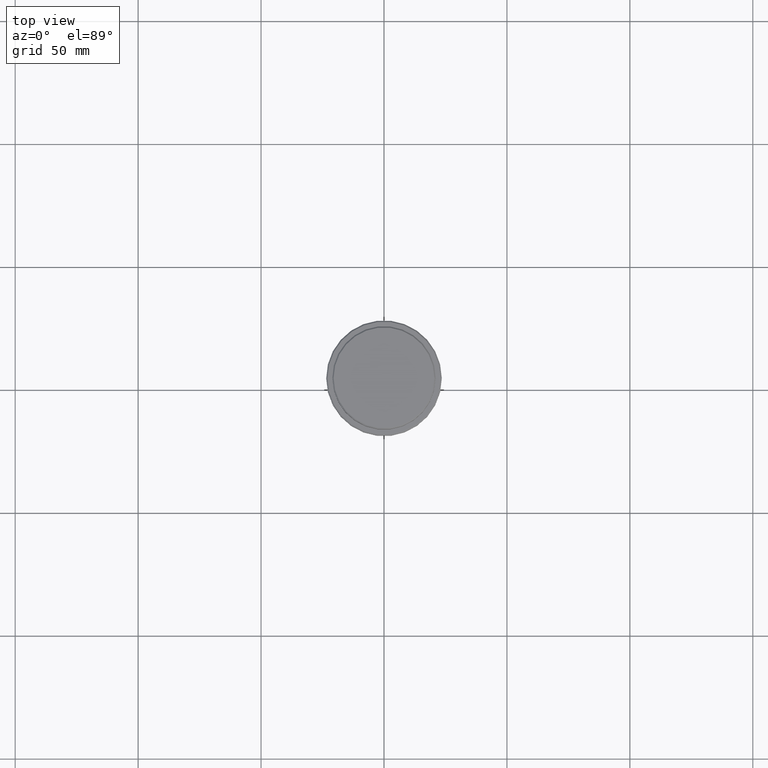
[diagram: clean part render]
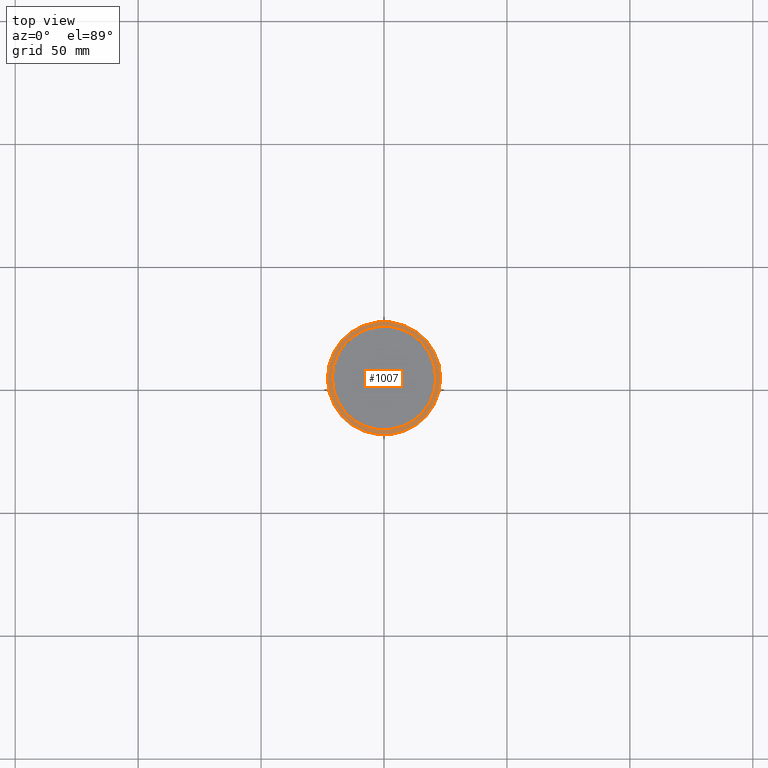
[diagram: same view with one face highlighted and labeled with its STEP entity id]
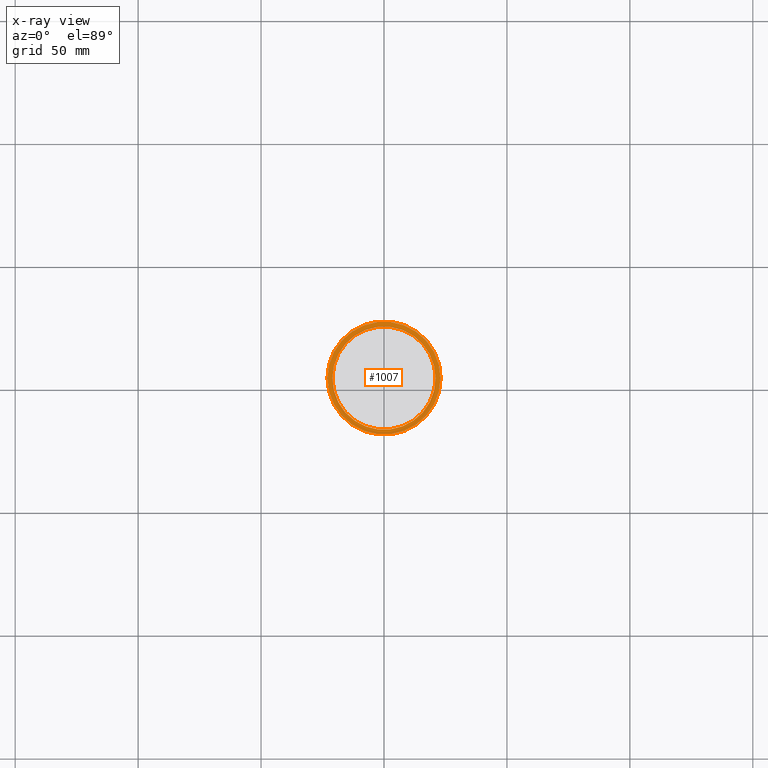
[diagram: x-ray of the same camera — body ghosted, the highlighted face saturated]
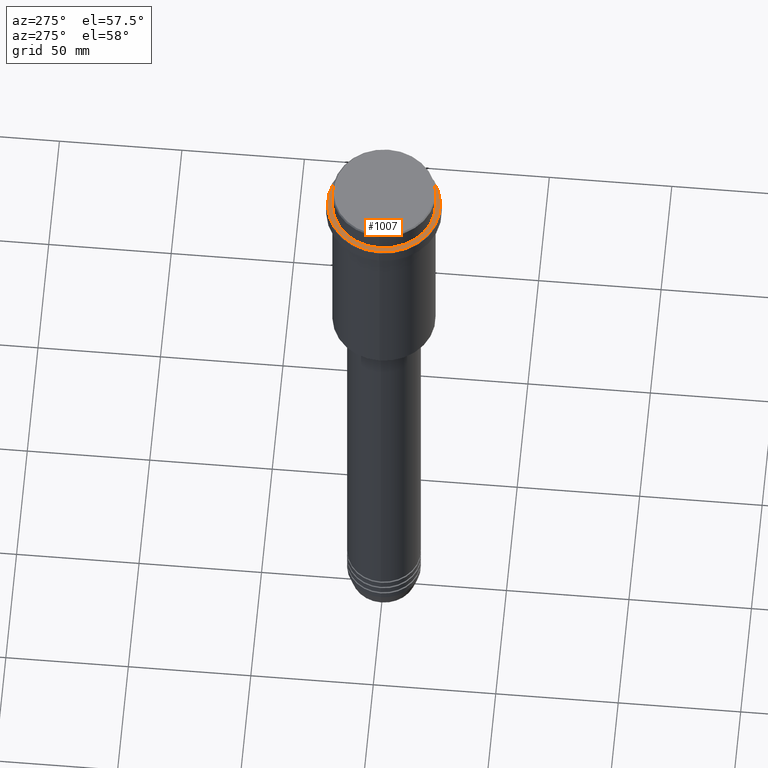
[diagram: same view with one face highlighted and labeled with its STEP entity id]
A machine part, top view. The second image highlights one B-rep face of the part: STEP entity #1007.
The next image is the same camera in x-ray: the body ghosted, the highlighted face saturated — about 0% of this face is hidden behind the body in this view.
A second angle (auxiliary view) of the same face is appended — the face is thin or edge-on in the first view.
In plain terms, the highlighted planar face has unit normal (0, -0, 1).
Its self-contained STEP definition (entity closure, byte-faithful):
#76 = CARTESIAN_POINT ( 'NONE',  ( 0.000000000000000000, 0.000000000000000000, -9.000000000000001776 ) ) ;
#120 = ORIENTED_EDGE ( 'NONE', *, *, #867, .T. ) ;
#130 = EDGE_CURVE ( 'NONE', #326, #1393, #586, .T. ) ;
#217 = DIRECTION ( 'NONE',  ( 1.000000000000000000, 0.000000000000000000, 0.000000000000000000 ) ) ;
#226 = AXIS2_PLACEMENT_3D ( 'NONE', #928, #712, #491 ) ;
#262 = ORIENTED_EDGE ( 'NONE', *, *, #307, .T. ) ;
#307 = EDGE_CURVE ( 'NONE', #861, #483, #794, .T. ) ;
#326 = VERTEX_POINT ( 'NONE', #1111 ) ;
#363 = DIRECTION ( 'NONE',  ( 1.000000000000000000, 0.000000000000000000, 0.000000000000000000 ) ) ;
#367 = CIRCLE ( 'NONE', #617, 23.00000000000002487 ) ;
#412 = DIRECTION ( 'NONE',  ( -0.000000000000000000, -0.000000000000000000, 1.000000000000000000 ) ) ;
#444 = FACE_OUTER_BOUND ( 'NONE', #1053, .T. ) ;
#450 = ORIENTED_EDGE ( 'NONE', *, *, #671, .T. ) ;
#483 = VERTEX_POINT ( 'NONE', #502 ) ;
#491 = DIRECTION ( 'NONE',  ( 1.000000000000000000, 0.000000000000000000, 0.000000000000000000 ) ) ;
#502 = CARTESIAN_POINT ( 'NONE',  ( 23.00000000000002487, 2.847303808017597717E-15, -9.000000000000001776 ) ) ;
#586 = CIRCLE ( 'NONE', #663, 20.99999999999999289 ) ;
#617 = AXIS2_PLACEMENT_3D ( 'NONE', #76, #412, #845 ) ;
#663 = AXIS2_PLACEMENT_3D ( 'NONE', #1193, #1307, #217 ) ;
#671 = EDGE_CURVE ( 'NONE', #483, #861, #367, .T. ) ;
#712 = DIRECTION ( 'NONE',  ( 0.000000000000000000, 0.000000000000000000, -1.000000000000000000 ) ) ;
#794 = CIRCLE ( 'NONE', #977, 23.00000000000002487 ) ;
#799 = AXIS2_PLACEMENT_3D ( 'NONE', #1280, #947, #1081 ) ;
#845 = DIRECTION ( 'NONE',  ( 1.000000000000000000, 0.000000000000000000, 0.000000000000000000 ) ) ;
#861 = VERTEX_POINT ( 'NONE', #1127 ) ;
#866 = CIRCLE ( 'NONE', #226, 20.99999999999999289 ) ;
#867 = EDGE_CURVE ( 'NONE', #1393, #326, #866, .T. ) ;
#879 = CARTESIAN_POINT ( 'NONE',  ( 20.99999999999999289, 0.000000000000000000, -9.000000000000001776 ) ) ;
#884 = CARTESIAN_POINT ( 'NONE',  ( 0.000000000000000000, 0.000000000000000000, -9.000000000000001776 ) ) ;
#903 = EDGE_LOOP ( 'NONE', ( #120, #1348 ) ) ;
#928 = CARTESIAN_POINT ( 'NONE',  ( 0.000000000000000000, 0.000000000000000000, -9.000000000000001776 ) ) ;
#947 = DIRECTION ( 'NONE',  ( 0.000000000000000000, -0.000000000000000000, 1.000000000000000000 ) ) ;
#977 = AXIS2_PLACEMENT_3D ( 'NONE', #884, #1013, #363 ) ;
#978 = PLANE ( 'NONE',  #799 ) ;
#1007 = ADVANCED_FACE ( 'NONE', ( #444, #1064 ), #978, .T. ) ;
#1013 = DIRECTION ( 'NONE',  ( -0.000000000000000000, -0.000000000000000000, 1.000000000000000000 ) ) ;
#1053 = EDGE_LOOP ( 'NONE', ( #262, #450 ) ) ;
#1064 = FACE_BOUND ( 'NONE', #903, .T. ) ;
#1081 = DIRECTION ( 'NONE',  ( 1.000000000000000000, 0.000000000000000000, 0.000000000000000000 ) ) ;
#1111 = CARTESIAN_POINT ( 'NONE',  ( -20.99999999999999289, 2.571758278209440872E-15, -9.000000000000001776 ) ) ;
#1127 = CARTESIAN_POINT ( 'NONE',  ( -23.00000000000002487, 0.000000000000000000, -9.000000000000001776 ) ) ;
#1193 = CARTESIAN_POINT ( 'NONE',  ( 0.000000000000000000, 0.000000000000000000, -9.000000000000001776 ) ) ;
#1280 = CARTESIAN_POINT ( 'NONE',  ( 0.000000000000000000, 20.49999999999999645, -9.000000000000001776 ) ) ;
#1307 = DIRECTION ( 'NONE',  ( 0.000000000000000000, 0.000000000000000000, -1.000000000000000000 ) ) ;
#1348 = ORIENTED_EDGE ( 'NONE', *, *, #130, .T. ) ;
#1393 = VERTEX_POINT ( 'NONE', #879 ) ;